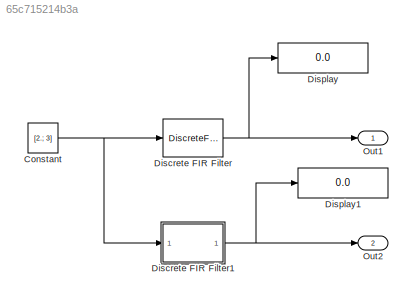
MODEL slx_65c715214b3a
KIND model
CONFIG AbsTol = auto
CONFIG EnableMultiTasking = on
CONFIG FixedStep = 0.200000
CONFIG MaxStep = auto
CONFIG MinStep = auto
CONFIG RelTol = 1e-3
CONFIG SampleTimeConstraint = Unconstrained
CONFIG Solver = ode3
CONFIG SolverName = ode3
CONFIG StartTime = 0.0
CONFIG StopTime = 10.0
WORKSPACE source: MAT-file member
WORKSPACE A = [2 5 4 4]
BLOCK [Constant] Constant
  Value = [2.; 3]
BLOCK [DiscreteFir] Discrete FIR Filter
  Coefficients = [0.4 0.5]
  InputPortMap = u0
  OutputPortMap = o0
  Ports = [1, 1]
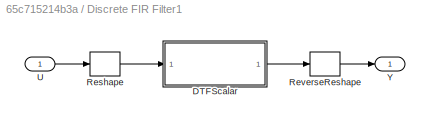
BLOCK [SubSystem] Discrete FIR Filter1
  MinAlgLoopOccurrences = on
  Ports = [1, 1]
  RequestExecContextInheritance = off
  TreatAsAtomicUnit = on
  Variant = off
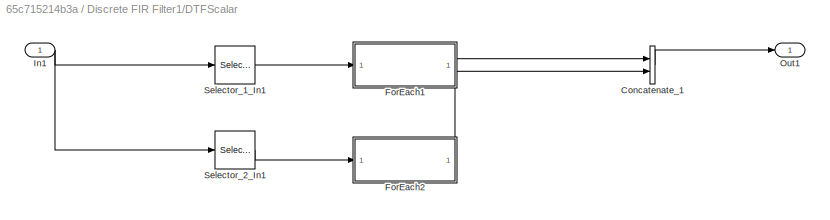
BLOCK [SubSystem] Discrete FIR Filter1/DTFScalar
  MinAlgLoopOccurrences = on
  Ports = [1, 1]
  RequestExecContextInheritance = off
  TreatAsAtomicUnit = on
  Variant = off
BLOCK [Concatenate] Discrete FIR Filter1/DTFScalar/Concatenate_1
  Mode = Multidimensional array
  Ports = [2, 1]
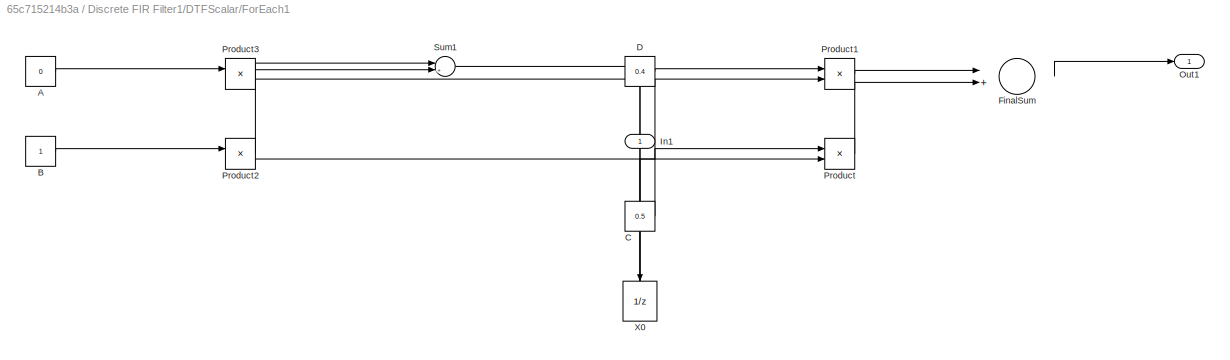
BLOCK [SubSystem] Discrete FIR Filter1/DTFScalar/ForEach1
  MinAlgLoopOccurrences = on
  Ports = [1, 1]
  RequestExecContextInheritance = off
  TreatAsAtomicUnit = on
  Variant = off
BLOCK [Constant] Discrete FIR Filter1/DTFScalar/ForEach1/A
  Value = 0
  VectorParams1D = off
BLOCK [Constant] Discrete FIR Filter1/DTFScalar/ForEach1/B
  VectorParams1D = off
BLOCK [Constant] Discrete FIR Filter1/DTFScalar/ForEach1/C
  Value = 0.5
  VectorParams1D = off
BLOCK [Constant] Discrete FIR Filter1/DTFScalar/ForEach1/D
  Value = 0.4
  VectorParams1D = off
BLOCK [Sum] Discrete FIR Filter1/DTFScalar/ForEach1/FinalSum
  InputSameDT = off
  Inputs = |++
  OutDataTypeStr = Inherit: Same as accumulator
  Ports = [2, 1]
  SaturateOnIntegerOverflow = off
BLOCK [Inport] Discrete FIR Filter1/DTFScalar/ForEach1/In1
  IconDisplay = Port number
BLOCK [Outport] Discrete FIR Filter1/DTFScalar/ForEach1/Out1
  IconDisplay = Port number
BLOCK [Product] Discrete FIR Filter1/DTFScalar/ForEach1/Product
  InputSameDT = off
  Multiplication = Matrix(*)
  OutDataTypeStr = Inherit: Inherit via internal rule
  Ports = [2, 1]
  RndMeth = Floor
  SaturateOnIntegerOverflow = off
BLOCK [Product] Discrete FIR Filter1/DTFScalar/ForEach1/Product1
  InputSameDT = off
  OutDataTypeStr = Inherit: Inherit via internal rule
  Ports = [2, 1]
  RndMeth = Floor
  SaturateOnIntegerOverflow = off
BLOCK [Product] Discrete FIR Filter1/DTFScalar/ForEach1/Product2
  InputSameDT = off
  OutDataTypeStr = Inherit: Inherit via internal rule
  Ports = [2, 1]
  RndMeth = Floor
  SaturateOnIntegerOverflow = off
BLOCK [Product] Discrete FIR Filter1/DTFScalar/ForEach1/Product3
  InputSameDT = off
  Multiplication = Matrix(*)
  OutDataTypeStr = Inherit: Inherit via internal rule
  Ports = [2, 1]
  RndMeth = Floor
  SaturateOnIntegerOverflow = off
BLOCK [Sum] Discrete FIR Filter1/DTFScalar/ForEach1/Sum1
  IconShape = round
  InputSameDT = off
  Inputs = |++
  OutDataTypeStr = Inherit: Inherit via internal rule
  Ports = [2, 1]
  SaturateOnIntegerOverflow = off
BLOCK [UnitDelay] Discrete FIR Filter1/DTFScalar/ForEach1/X0
  InputProcessing = Elements as channels (sample based)
  SampleTime = -1
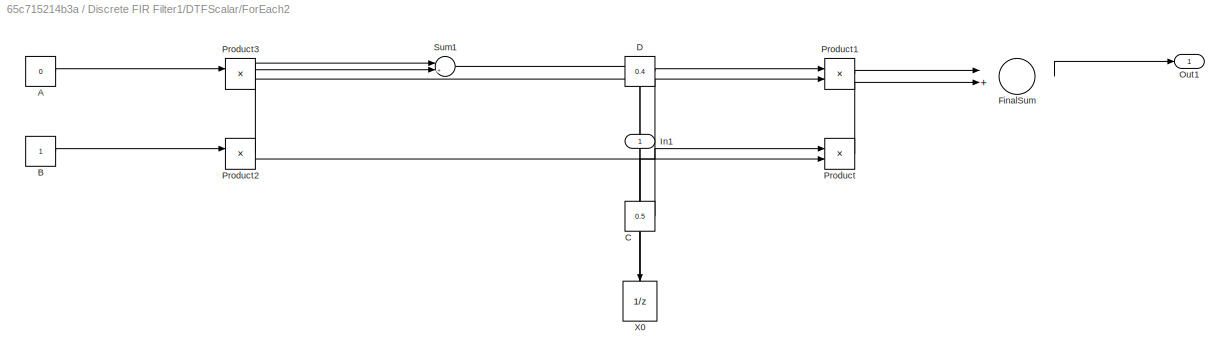
BLOCK [SubSystem] Discrete FIR Filter1/DTFScalar/ForEach2
  MinAlgLoopOccurrences = on
  Ports = [1, 1]
  RequestExecContextInheritance = off
  TreatAsAtomicUnit = on
  Variant = off
BLOCK [Constant] Discrete FIR Filter1/DTFScalar/ForEach2/A
  Value = 0
  VectorParams1D = off
BLOCK [Constant] Discrete FIR Filter1/DTFScalar/ForEach2/B
  VectorParams1D = off
BLOCK [Constant] Discrete FIR Filter1/DTFScalar/ForEach2/C
  Value = 0.5
  VectorParams1D = off
BLOCK [Constant] Discrete FIR Filter1/DTFScalar/ForEach2/D
  Value = 0.4
  VectorParams1D = off
BLOCK [Sum] Discrete FIR Filter1/DTFScalar/ForEach2/FinalSum
  InputSameDT = off
  Inputs = |++
  OutDataTypeStr = Inherit: Same as accumulator
  Ports = [2, 1]
  SaturateOnIntegerOverflow = off
BLOCK [Inport] Discrete FIR Filter1/DTFScalar/ForEach2/In1
  IconDisplay = Port number
BLOCK [Outport] Discrete FIR Filter1/DTFScalar/ForEach2/Out1
  IconDisplay = Port number
BLOCK [Product] Discrete FIR Filter1/DTFScalar/ForEach2/Product
  InputSameDT = off
  Multiplication = Matrix(*)
  OutDataTypeStr = Inherit: Inherit via internal rule
  Ports = [2, 1]
  RndMeth = Floor
  SaturateOnIntegerOverflow = off
BLOCK [Product] Discrete FIR Filter1/DTFScalar/ForEach2/Product1
  InputSameDT = off
  OutDataTypeStr = Inherit: Inherit via internal rule
  Ports = [2, 1]
  RndMeth = Floor
  SaturateOnIntegerOverflow = off
BLOCK [Product] Discrete FIR Filter1/DTFScalar/ForEach2/Product2
  InputSameDT = off
  OutDataTypeStr = Inherit: Inherit via internal rule
  Ports = [2, 1]
  RndMeth = Floor
  SaturateOnIntegerOverflow = off
BLOCK [Product] Discrete FIR Filter1/DTFScalar/ForEach2/Product3
  InputSameDT = off
  Multiplication = Matrix(*)
  OutDataTypeStr = Inherit: Inherit via internal rule
  Ports = [2, 1]
  RndMeth = Floor
  SaturateOnIntegerOverflow = off
BLOCK [Sum] Discrete FIR Filter1/DTFScalar/ForEach2/Sum1
  IconShape = round
  InputSameDT = off
  Inputs = |++
  OutDataTypeStr = Inherit: Inherit via internal rule
  Ports = [2, 1]
  SaturateOnIntegerOverflow = off
BLOCK [UnitDelay] Discrete FIR Filter1/DTFScalar/ForEach2/X0
  InputProcessing = Elements as channels (sample based)
  SampleTime = -1
BLOCK [Inport] Discrete FIR Filter1/DTFScalar/In1
  IconDisplay = Port number
BLOCK [Outport] Discrete FIR Filter1/DTFScalar/Out1
  IconDisplay = Port number
BLOCK [Selector] Discrete FIR Filter1/DTFScalar/Selector_1_In1
  IndexOptions = Index vector (dialog),Select all
  Indices = 1,
  NumberOfDimensions = 2
  OutputSizes = 1
  Ports = [1, 1]
BLOCK [Selector] Discrete FIR Filter1/DTFScalar/Selector_2_In1
  IndexOptions = Index vector (dialog),Select all
  Indices = 2,
  NumberOfDimensions = 2
  OutputSizes = 1
  Ports = [1, 1]
BLOCK [Reshape] Discrete FIR Filter1/Reshape
  OutputDimensionality = Column vector (2-D)
  Ports = [1, 1]
BLOCK [Reshape] Discrete FIR Filter1/ReverseReshape
  OutputDimensionality = Customize
  OutputDimensions = [2 1]
  Ports = [1, 1]
BLOCK [Inport] Discrete FIR Filter1/U
  IconDisplay = Port number
BLOCK [Outport] Discrete FIR Filter1/Y
  IconDisplay = Port number
BLOCK [Display] Display
  Decimation = 1
  Ports = [1]
BLOCK [Display] Display1
  Decimation = 1
  Ports = [1]
BLOCK [Outport] Out1
  IconDisplay = Port number
BLOCK [Outport] Out2
  IconDisplay = Port number
  Port = 2
NET Constant:1 -> Discrete FIR Filter1:1, Discrete FIR Filter:1
LINE Discrete FIR Filter1/DTFScalar/Concatenate_1:1 -> Discrete FIR Filter1/DTFScalar/Out1:1
LINE Discrete FIR Filter1/DTFScalar/ForEach1/A:1 -> Discrete FIR Filter1/DTFScalar/ForEach1/Product3:1
LINE Discrete FIR Filter1/DTFScalar/ForEach1/B:1 -> Discrete FIR Filter1/DTFScalar/ForEach1/Product2:1
LINE Discrete FIR Filter1/DTFScalar/ForEach1/C:1 -> Discrete FIR Filter1/DTFScalar/ForEach1/Product:1
LINE Discrete FIR Filter1/DTFScalar/ForEach1/D:1 -> Discrete FIR Filter1/DTFScalar/ForEach1/Product1:1
LINE Discrete FIR Filter1/DTFScalar/ForEach1/FinalSum:1 -> Discrete FIR Filter1/DTFScalar/ForEach1/Out1:1
NET Discrete FIR Filter1/DTFScalar/ForEach1/In1:1 -> Discrete FIR Filter1/DTFScalar/ForEach1/Product1:2, Discrete FIR Filter1/DTFScalar/ForEach1/Product2:2
LINE Discrete FIR Filter1/DTFScalar/ForEach1/Product1:1 -> Discrete FIR Filter1/DTFScalar/ForEach1/FinalSum:1
LINE Discrete FIR Filter1/DTFScalar/ForEach1/Product2:1 -> Discrete FIR Filter1/DTFScalar/ForEach1/Sum1:2
LINE Discrete FIR Filter1/DTFScalar/ForEach1/Product3:1 -> Discrete FIR Filter1/DTFScalar/ForEach1/Sum1:1
LINE Discrete FIR Filter1/DTFScalar/ForEach1/Product:1 -> Discrete FIR Filter1/DTFScalar/ForEach1/FinalSum:2
LINE Discrete FIR Filter1/DTFScalar/ForEach1/Sum1:1 -> Discrete FIR Filter1/DTFScalar/ForEach1/X0:1
NET Discrete FIR Filter1/DTFScalar/ForEach1/X0:1 -> Discrete FIR Filter1/DTFScalar/ForEach1/Product3:2, Discrete FIR Filter1/DTFScalar/ForEach1/Product:2
LINE Discrete FIR Filter1/DTFScalar/ForEach1:1 -> Discrete FIR Filter1/DTFScalar/Concatenate_1:1
LINE Discrete FIR Filter1/DTFScalar/ForEach2/A:1 -> Discrete FIR Filter1/DTFScalar/ForEach2/Product3:1
LINE Discrete FIR Filter1/DTFScalar/ForEach2/B:1 -> Discrete FIR Filter1/DTFScalar/ForEach2/Product2:1
LINE Discrete FIR Filter1/DTFScalar/ForEach2/C:1 -> Discrete FIR Filter1/DTFScalar/ForEach2/Product:1
LINE Discrete FIR Filter1/DTFScalar/ForEach2/D:1 -> Discrete FIR Filter1/DTFScalar/ForEach2/Product1:1
LINE Discrete FIR Filter1/DTFScalar/ForEach2/FinalSum:1 -> Discrete FIR Filter1/DTFScalar/ForEach2/Out1:1
NET Discrete FIR Filter1/DTFScalar/ForEach2/In1:1 -> Discrete FIR Filter1/DTFScalar/ForEach2/Product1:2, Discrete FIR Filter1/DTFScalar/ForEach2/Product2:2
LINE Discrete FIR Filter1/DTFScalar/ForEach2/Product1:1 -> Discrete FIR Filter1/DTFScalar/ForEach2/FinalSum:1
LINE Discrete FIR Filter1/DTFScalar/ForEach2/Product2:1 -> Discrete FIR Filter1/DTFScalar/ForEach2/Sum1:2
LINE Discrete FIR Filter1/DTFScalar/ForEach2/Product3:1 -> Discrete FIR Filter1/DTFScalar/ForEach2/Sum1:1
LINE Discrete FIR Filter1/DTFScalar/ForEach2/Product:1 -> Discrete FIR Filter1/DTFScalar/ForEach2/FinalSum:2
LINE Discrete FIR Filter1/DTFScalar/ForEach2/Sum1:1 -> Discrete FIR Filter1/DTFScalar/ForEach2/X0:1
NET Discrete FIR Filter1/DTFScalar/ForEach2/X0:1 -> Discrete FIR Filter1/DTFScalar/ForEach2/Product3:2, Discrete FIR Filter1/DTFScalar/ForEach2/Product:2
LINE Discrete FIR Filter1/DTFScalar/ForEach2:1 -> Discrete FIR Filter1/DTFScalar/Concatenate_1:2
NET Discrete FIR Filter1/DTFScalar/In1:1 -> Discrete FIR Filter1/DTFScalar/Selector_1_In1:1, Discrete FIR Filter1/DTFScalar/Selector_2_In1:1
LINE Discrete FIR Filter1/DTFScalar/Selector_1_In1:1 -> Discrete FIR Filter1/DTFScalar/ForEach1:1
LINE Discrete FIR Filter1/DTFScalar/Selector_2_In1:1 -> Discrete FIR Filter1/DTFScalar/ForEach2:1
LINE Discrete FIR Filter1/DTFScalar:1 -> Discrete FIR Filter1/ReverseReshape:1
LINE Discrete FIR Filter1/Reshape:1 -> Discrete FIR Filter1/DTFScalar:1
LINE Discrete FIR Filter1/ReverseReshape:1 -> Discrete FIR Filter1/Y:1
LINE Discrete FIR Filter1/U:1 -> Discrete FIR Filter1/Reshape:1
NET Discrete FIR Filter1:1 -> Display1:1, Out2:1
NET Discrete FIR Filter:1 -> Display:1, Out1:1
note: NET lines group one-source signal fan-out (src -> all destinations, sorted); 1:1 wires keep LINE
